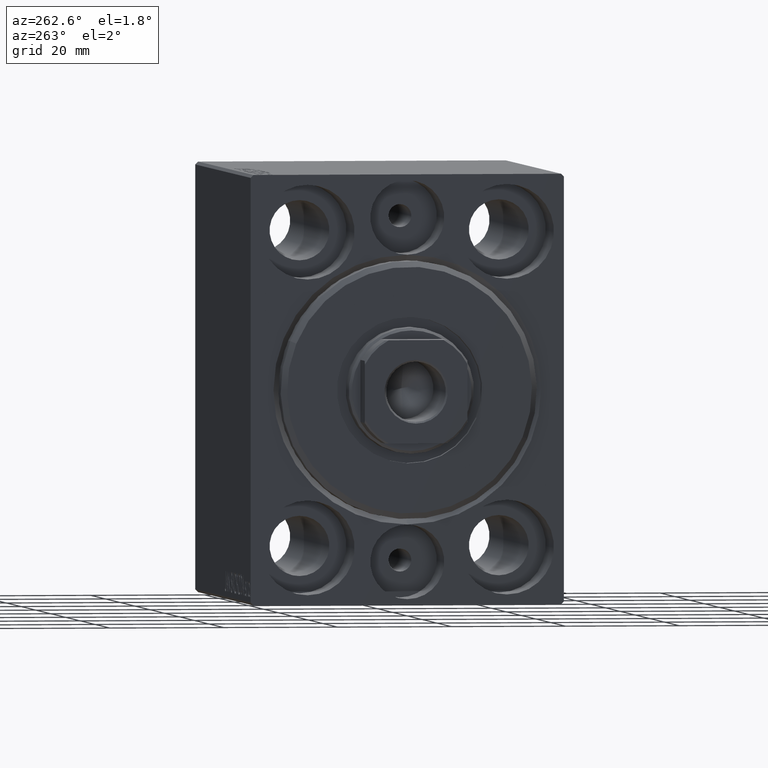
[diagram: clean part render]
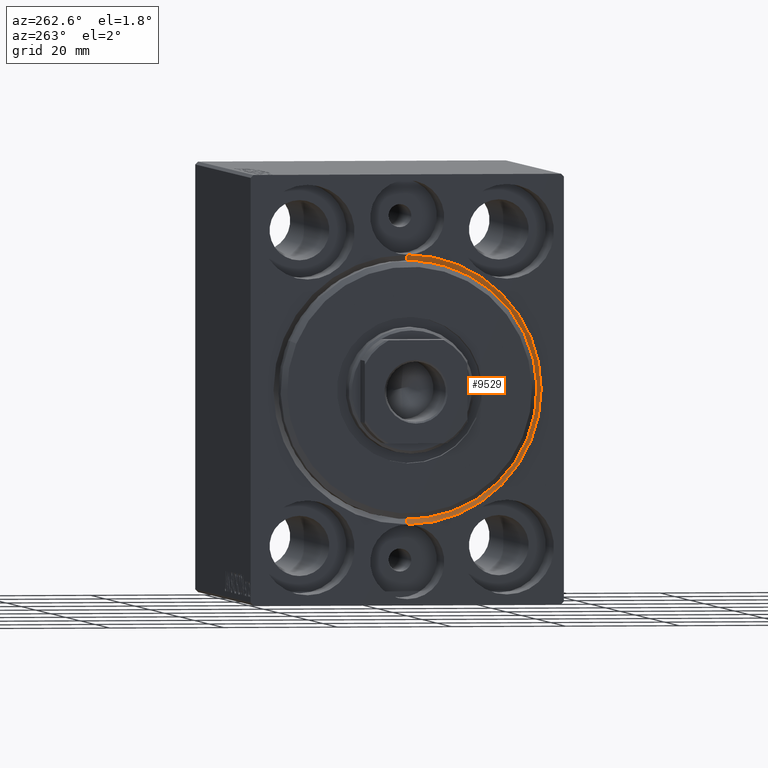
[diagram: same view with one face highlighted and labeled with its STEP entity id]
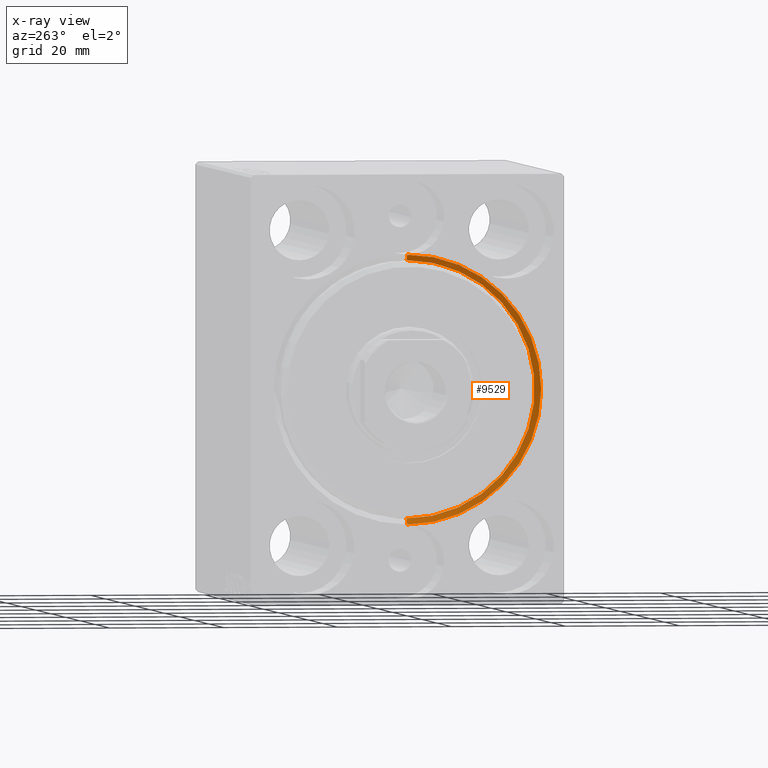
[diagram: x-ray of the same camera — body ghosted, the highlighted face saturated]
A machine part, auxiliary view. The second image highlights one B-rep face of the part: STEP entity #9529.
The next image is the same camera in x-ray: the body ghosted, the highlighted face saturated — about 0% of this face is hidden behind the body in this view.
In plain terms, the highlighted conical surface has half-angle 45 deg.
Its self-contained STEP definition (entity closure, byte-faithful):
#203 = CARTESIAN_POINT ( 'NONE',  ( 0.000000000000000000, 0.000000000000000000, -23.50000000000000355 ) ) ;
#2510 = DIRECTION ( 'NONE',  ( 1.000000000000000000, 0.000000000000000000, 0.000000000000000000 ) ) ;
#3238 = CARTESIAN_POINT ( 'NONE',  ( 0.000000000000000000, 0.000000000000000000, 23.50000000000000355 ) ) ;
#4203 = DIRECTION ( 'NONE',  ( -0.7071067811865474617, 8.659560562354932858E-17, -0.7071067811865474617 ) ) ;
#5815 = CARTESIAN_POINT ( 'NONE',  ( 0.000000000000000000, 0.000000000000000000, 0.000000000000000000 ) ) ;
#6035 = DIRECTION ( 'NONE',  ( 0.000000000000000000, 0.000000000000000000, -1.000000000000000000 ) ) ;
#6678 = EDGE_CURVE ( 'NONE', #42857, #34864, #30636, .T. ) ;
#8495 = VERTEX_POINT ( 'NONE', #14664 ) ;
#8957 = LINE ( 'NONE', #34464, #29446 ) ;
#9529 = ADVANCED_FACE ( 'NONE', ( #21251 ), #29319, .F. ) ;
#9565 = AXIS2_PLACEMENT_3D ( 'NONE', #11296, #14618, #34729 ) ;
#11296 = CARTESIAN_POINT ( 'NONE',  ( 1.000000000000000888, 0.000000000000000000, 0.000000000000000000 ) ) ;
#14618 = DIRECTION ( 'NONE',  ( -1.000000000000000000, 0.000000000000000000, 0.000000000000000000 ) ) ;
#14664 = CARTESIAN_POINT ( 'NONE',  ( 1.000000000000000888, 2.755455298081545172E-15, -22.50000000000000355 ) ) ;
#15356 = EDGE_CURVE ( 'NONE', #8495, #27120, #42162, .T. ) ;
#16500 = ORIENTED_EDGE ( 'NONE', *, *, #6678, .F. ) ;
#19618 = EDGE_CURVE ( 'NONE', #8495, #34864, #8957, .T. ) ;
#21251 = FACE_OUTER_BOUND ( 'NONE', #35452, .T. ) ;
#21588 = DIRECTION ( 'NONE',  ( 0.000000000000000000, 0.000000000000000000, -1.000000000000000000 ) ) ;
#21796 = EDGE_CURVE ( 'NONE', #27120, #42857, #43605, .T. ) ;
#23117 = AXIS2_PLACEMENT_3D ( 'NONE', #41905, #41484, #21588 ) ;
#23135 = ORIENTED_EDGE ( 'NONE', *, *, #19618, .T. ) ;
#27120 = VERTEX_POINT ( 'NONE', #35965 ) ;
#29319 = CONICAL_SURFACE ( 'NONE', #9565, 22.50000000000000355, 0.7853981633974482790 ) ;
#29446 = VECTOR ( 'NONE', #4203, 1000.000000000000114 ) ;
#30330 = CARTESIAN_POINT ( 'NONE',  ( 1.000000000000000888, 0.000000000000000000, 22.50000000000000355 ) ) ;
#30636 = CIRCLE ( 'NONE', #34876, 23.50000000000000355 ) ;
#34464 = CARTESIAN_POINT ( 'NONE',  ( 1.000000000000000888, 2.755455298081545172E-15, -22.50000000000000355 ) ) ;
#34729 = DIRECTION ( 'NONE',  ( 0.000000000000000000, 0.000000000000000000, 1.000000000000000000 ) ) ;
#34864 = VERTEX_POINT ( 'NONE', #203 ) ;
#34876 = AXIS2_PLACEMENT_3D ( 'NONE', #5815, #2510, #6035 ) ;
#35061 = ORIENTED_EDGE ( 'NONE', *, *, #15356, .F. ) ;
#35452 = EDGE_LOOP ( 'NONE', ( #35061, #23135, #16500, #38128 ) ) ;
#35871 = VECTOR ( 'NONE', #37192, 1000.000000000000114 ) ;
#35965 = CARTESIAN_POINT ( 'NONE',  ( 1.000000000000000888, 0.000000000000000000, 22.50000000000000355 ) ) ;
#37192 = DIRECTION ( 'NONE',  ( -0.7071067811865474617, 0.000000000000000000, 0.7071067811865474617 ) ) ;
#38128 = ORIENTED_EDGE ( 'NONE', *, *, #21796, .F. ) ;
#41484 = DIRECTION ( 'NONE',  ( -1.000000000000000000, 0.000000000000000000, 0.000000000000000000 ) ) ;
#41905 = CARTESIAN_POINT ( 'NONE',  ( 1.000000000000000888, 0.000000000000000000, 0.000000000000000000 ) ) ;
#42162 = CIRCLE ( 'NONE', #23117, 22.50000000000000355 ) ;
#42857 = VERTEX_POINT ( 'NONE', #3238 ) ;
#43605 = LINE ( 'NONE', #30330, #35871 ) ;